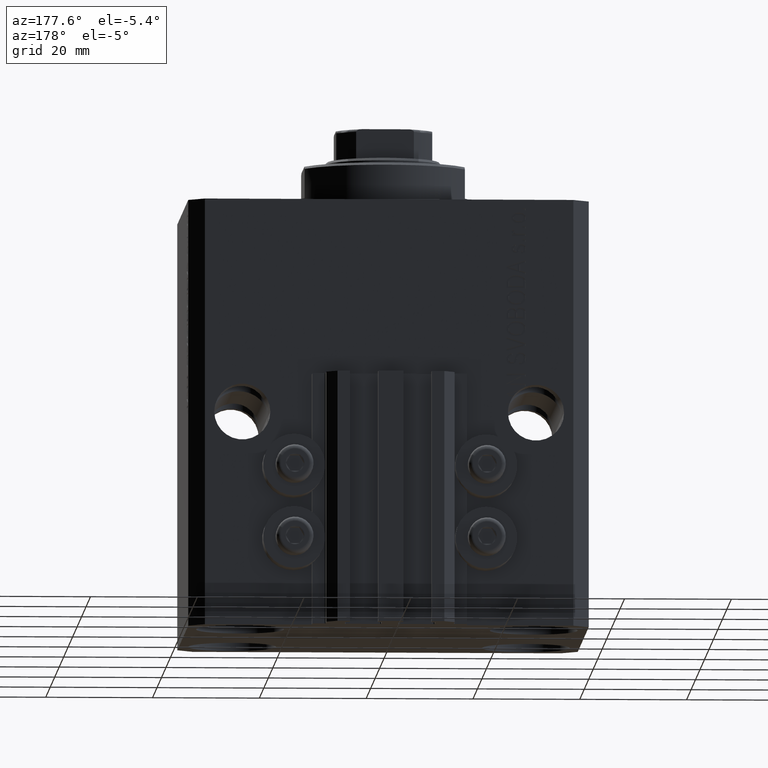
[diagram: clean part render]
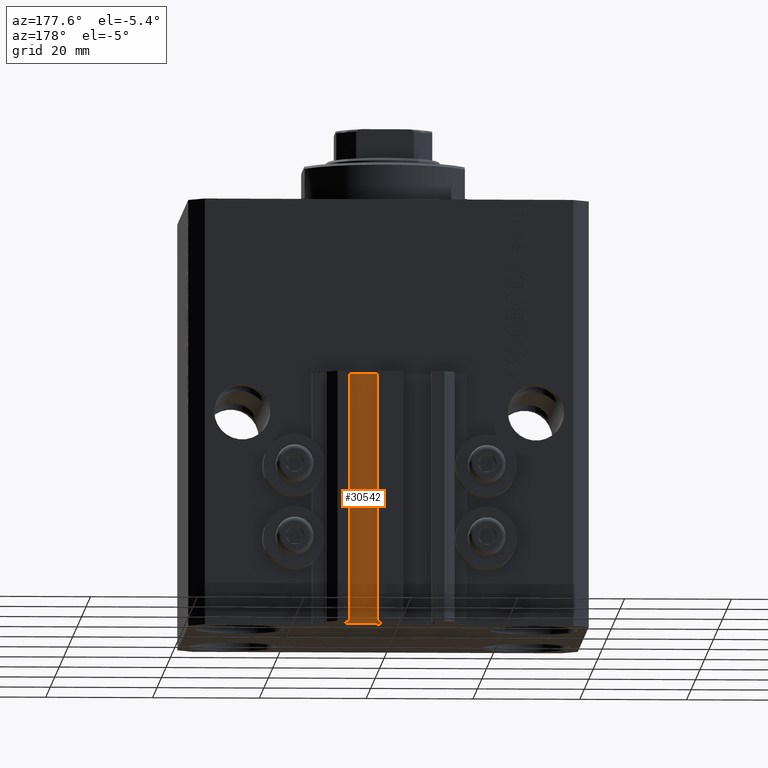
[diagram: same view with one face highlighted and labeled with its STEP entity id]
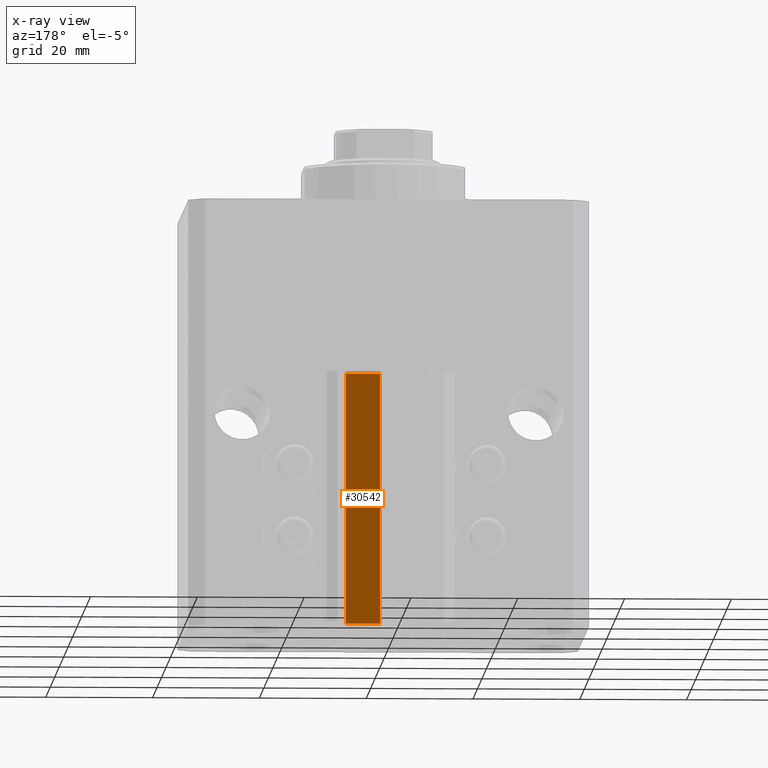
[diagram: x-ray of the same camera — body ghosted, the highlighted face saturated]
A machine part, auxiliary view. The second image highlights one B-rep face of the part: STEP entity #30542.
The next image is the same camera in x-ray: the body ghosted, the highlighted face saturated — about 0% of this face is hidden behind the body in this view.
In plain terms, the highlighted planar face has unit normal (-0, 1, 0).
Its self-contained STEP definition (entity closure, byte-faithful):
#613 = LINE ( 'NONE', #3448, #28347 ) ;
#1140 = ORIENTED_EDGE ( 'NONE', *, *, #37868, .F. ) ;
#1214 = DIRECTION ( 'NONE',  ( -1.000000000000000000, -1.084202172485504828E-15, 0.000000000000000000 ) ) ;
#3448 = CARTESIAN_POINT ( 'NONE',  ( 8.199999999999999289, 29.50000000000000711, -33.00000000000000000 ) ) ;
#3841 = CARTESIAN_POINT ( 'NONE',  ( 8.199999999999999289, 29.50000000000000711, -80.00000000000000000 ) ) ;
#4151 = DIRECTION ( 'NONE',  ( -1.000000000000000000, -1.084202172485504828E-15, 0.000000000000000000 ) ) ;
#5236 = AXIS2_PLACEMENT_3D ( 'NONE', #12332, #26297, #1214 ) ;
#6856 = EDGE_CURVE ( 'NONE', #42097, #38890, #21623, .T. ) ;
#9211 = CARTESIAN_POINT ( 'NONE',  ( 1.800000000000000933, 29.50000000000000000, -33.00000000000000000 ) ) ;
#10716 = VECTOR ( 'NONE', #22030, 1000.000000000000000 ) ;
#12332 = CARTESIAN_POINT ( 'NONE',  ( 8.199999999999999289, 29.50000000000000711, -80.00000000000000000 ) ) ;
#14589 = VERTEX_POINT ( 'NONE', #9211 ) ;
#18442 = ORIENTED_EDGE ( 'NONE', *, *, #20236, .F. ) ;
#20236 = EDGE_CURVE ( 'NONE', #34262, #14589, #613, .T. ) ;
#20931 = ORIENTED_EDGE ( 'NONE', *, *, #40850, .T. ) ;
#21623 = LINE ( 'NONE', #3841, #23409 ) ;
#21859 = DIRECTION ( 'NONE',  ( -1.000000000000000000, -1.084202172485504828E-15, 0.000000000000000000 ) ) ;
#22030 = DIRECTION ( 'NONE',  ( 0.000000000000000000, 0.000000000000000000, 1.000000000000000000 ) ) ;
#23409 = VECTOR ( 'NONE', #21859, 1000.000000000000000 ) ;
#24371 = CARTESIAN_POINT ( 'NONE',  ( 8.199999999999999289, 29.50000000000000711, -80.00000000000000000 ) ) ;
#25928 = CARTESIAN_POINT ( 'NONE',  ( 8.199999999999999289, 29.50000000000000711, -33.00000000000000000 ) ) ;
#26297 = DIRECTION ( 'NONE',  ( -1.084202172485504828E-15, 1.000000000000000000, 0.000000000000000000 ) ) ;
#28347 = VECTOR ( 'NONE', #4151, 1000.000000000000000 ) ;
#30046 = CARTESIAN_POINT ( 'NONE',  ( 1.800000000000000933, 29.50000000000000000, -80.00000000000000000 ) ) ;
#30439 = ORIENTED_EDGE ( 'NONE', *, *, #6856, .T. ) ;
#30542 = ADVANCED_FACE ( 'NONE', ( #44773 ), #40978, .T. ) ;
#33135 = LINE ( 'NONE', #30046, #10716 ) ;
#34262 = VERTEX_POINT ( 'NONE', #25928 ) ;
#37868 = EDGE_CURVE ( 'NONE', #42097, #34262, #39320, .T. ) ;
#37996 = CARTESIAN_POINT ( 'NONE',  ( 1.800000000000000933, 29.50000000000000000, -80.00000000000000000 ) ) ;
#38890 = VERTEX_POINT ( 'NONE', #37996 ) ;
#39080 = DIRECTION ( 'NONE',  ( 0.000000000000000000, 0.000000000000000000, 1.000000000000000000 ) ) ;
#39320 = LINE ( 'NONE', #42392, #42414 ) ;
#40850 = EDGE_CURVE ( 'NONE', #38890, #14589, #33135, .T. ) ;
#40978 = PLANE ( 'NONE',  #5236 ) ;
#42097 = VERTEX_POINT ( 'NONE', #24371 ) ;
#42392 = CARTESIAN_POINT ( 'NONE',  ( 8.199999999999999289, 29.50000000000000711, -80.00000000000000000 ) ) ;
#42414 = VECTOR ( 'NONE', #39080, 1000.000000000000000 ) ;
#44773 = FACE_OUTER_BOUND ( 'NONE', #46647, .T. ) ;
#46647 = EDGE_LOOP ( 'NONE', ( #18442, #1140, #30439, #20931 ) ) ;